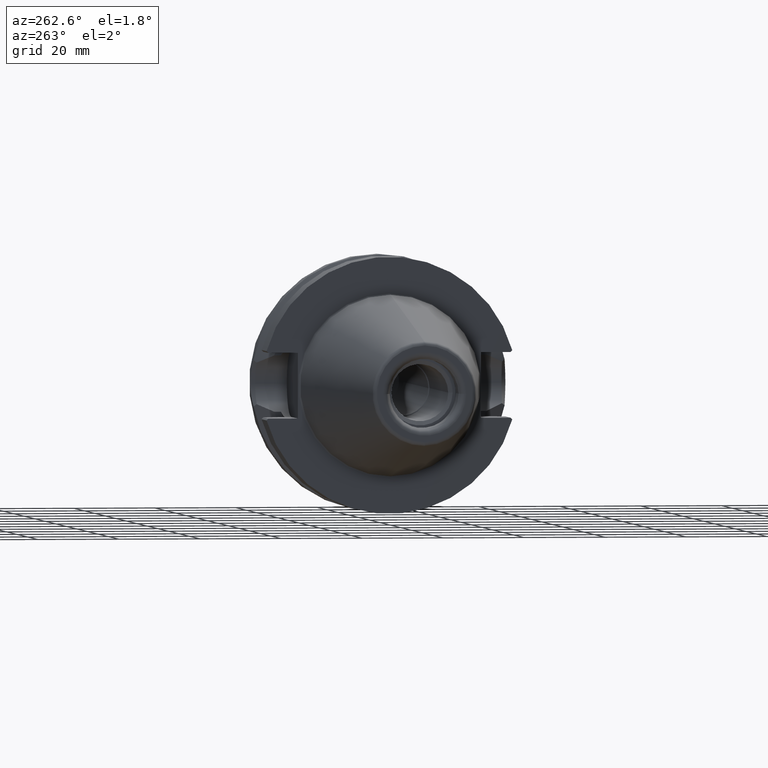
[diagram: clean part render]
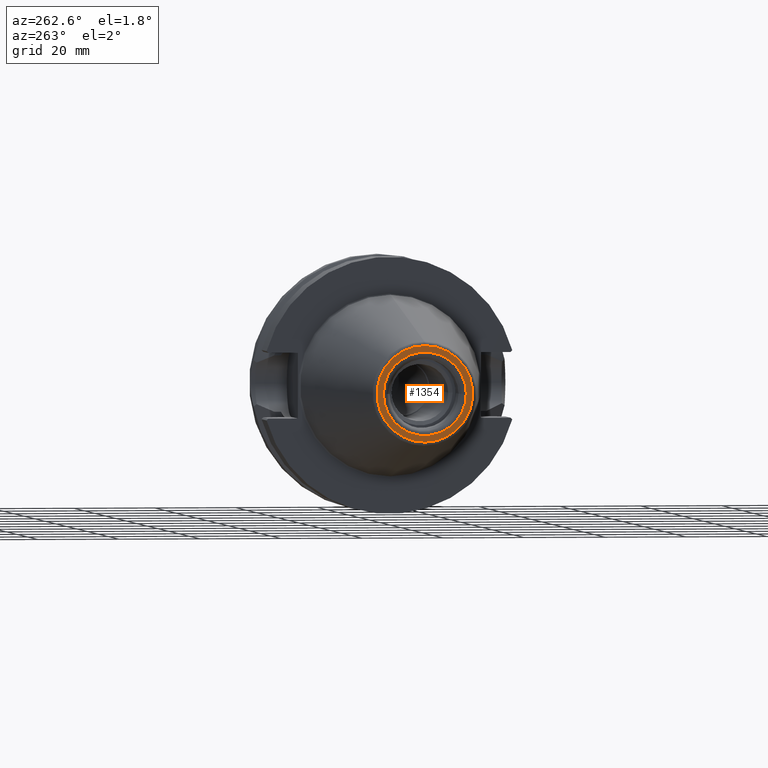
[diagram: same view with one face highlighted and labeled with its STEP entity id]
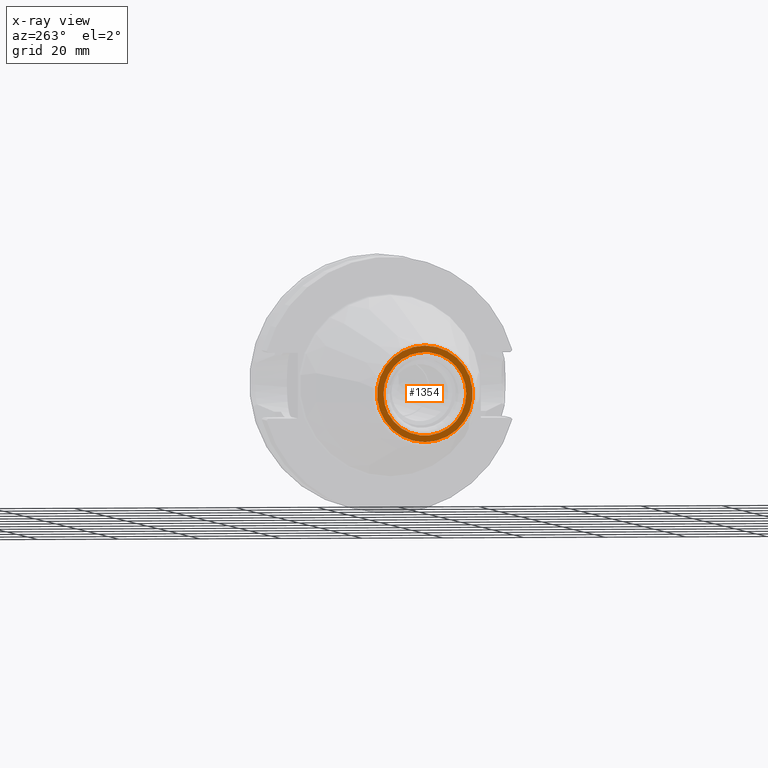
[diagram: x-ray of the same camera — body ghosted, the highlighted face saturated]
A machine part, auxiliary view. The second image highlights one B-rep face of the part: STEP entity #1354.
The next image is the same camera in x-ray: the body ghosted, the highlighted face saturated — about 0% of this face is hidden behind the body in this view.
In plain terms, the highlighted planar face has unit normal (1, 0, 0).
Its self-contained STEP definition (entity closure, byte-faithful):
#43=CARTESIAN_POINT('',(-6.54E1,0.E0,0.E0));
#44=DIRECTION('',(1.E0,0.E0,0.E0));
#45=DIRECTION('',(0.E0,-1.E0,6.962880139683E-8));
#46=AXIS2_PLACEMENT_3D('',#43,#44,#45);
#48=CARTESIAN_POINT('',(-6.54E1,0.E0,0.E0));
#49=DIRECTION('',(1.E0,0.E0,0.E0));
#50=DIRECTION('',(0.E0,1.E0,-6.962880482447E-8));
#51=AXIS2_PLACEMENT_3D('',#48,#49,#50);
#53=CARTESIAN_POINT('',(-6.54E1,0.E0,0.E0));
#54=DIRECTION('',(-1.E0,0.E0,0.E0));
#55=DIRECTION('',(0.E0,0.E0,1.E0));
#56=AXIS2_PLACEMENT_3D('',#53,#54,#55);
#58=CARTESIAN_POINT('',(-6.54E1,0.E0,0.E0));
#59=DIRECTION('',(-1.E0,0.E0,0.E0));
#60=DIRECTION('',(0.E0,0.E0,-1.E0));
#61=AXIS2_PLACEMENT_3D('',#58,#59,#60);
#1074=CARTESIAN_POINT('',(-6.54E1,-1.023205080757E1,7.124454427166E-7));
#1075=CARTESIAN_POINT('',(-6.54E1,1.023205080757E1,-7.124454665569E-7));
#1076=VERTEX_POINT('',#1074);
#1077=VERTEX_POINT('',#1075);
#1082=CARTESIAN_POINT('',(-6.54E1,0.E0,1.182275625261E1));
#1083=CARTESIAN_POINT('',(-6.54E1,0.E0,-1.182275625261E1));
#1084=VERTEX_POINT('',#1082);
#1085=VERTEX_POINT('',#1083);
#1338=CARTESIAN_POINT('',(-6.54E1,0.E0,0.E0));
#1339=DIRECTION('',(1.E0,0.E0,0.E0));
#1340=DIRECTION('',(0.E0,0.E0,1.E0));
#1341=AXIS2_PLACEMENT_3D('',#1338,#1339,#1340);
#1342=PLANE('',#1341);
#1344=ORIENTED_EDGE('',*,*,#1343,.F.);
#1345=ORIENTED_EDGE('',*,*,#1328,.F.);
#1346=EDGE_LOOP('',(#1344,#1345));
#1347=FACE_OUTER_BOUND('',#1346,.F.);
#1349=ORIENTED_EDGE('',*,*,#1348,.F.);
#1351=ORIENTED_EDGE('',*,*,#1350,.F.);
#1352=EDGE_LOOP('',(#1349,#1351));
#1353=FACE_BOUND('',#1352,.F.);
#1354=ADVANCED_FACE('',(#1347,#1353),#1342,.F.);
#47=CIRCLE('',#46,1.023205080757E1);
#52=CIRCLE('',#51,1.023205080757E1);
#57=CIRCLE('',#56,1.182275625261E1);
#62=CIRCLE('',#61,1.182275625261E1);
#1328=EDGE_CURVE('',#1085,#1084,#62,.T.);
#1343=EDGE_CURVE('',#1084,#1085,#57,.T.);
#1348=EDGE_CURVE('',#1076,#1077,#47,.T.);
#1350=EDGE_CURVE('',#1077,#1076,#52,.T.);